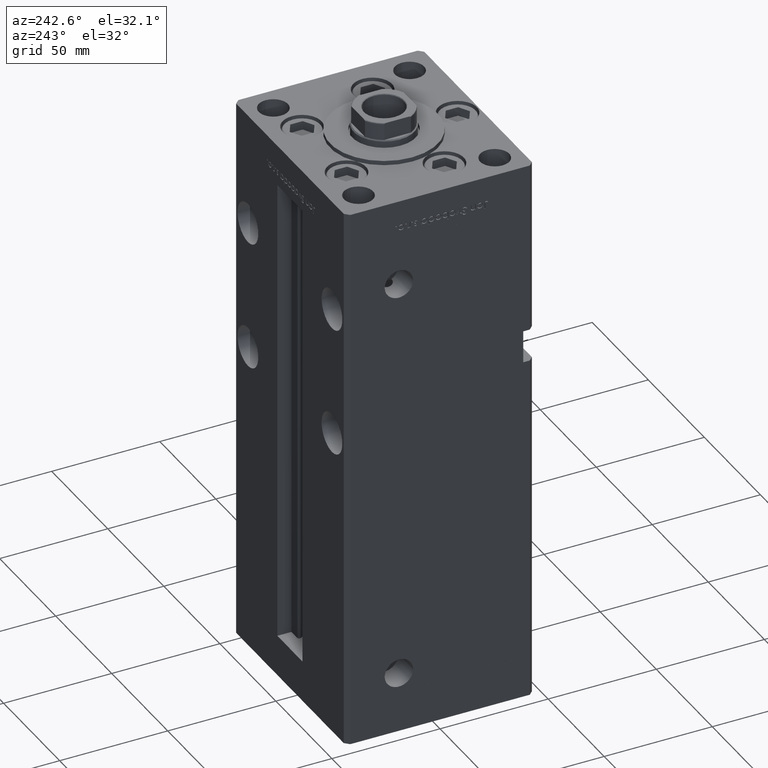
[diagram: clean part render]
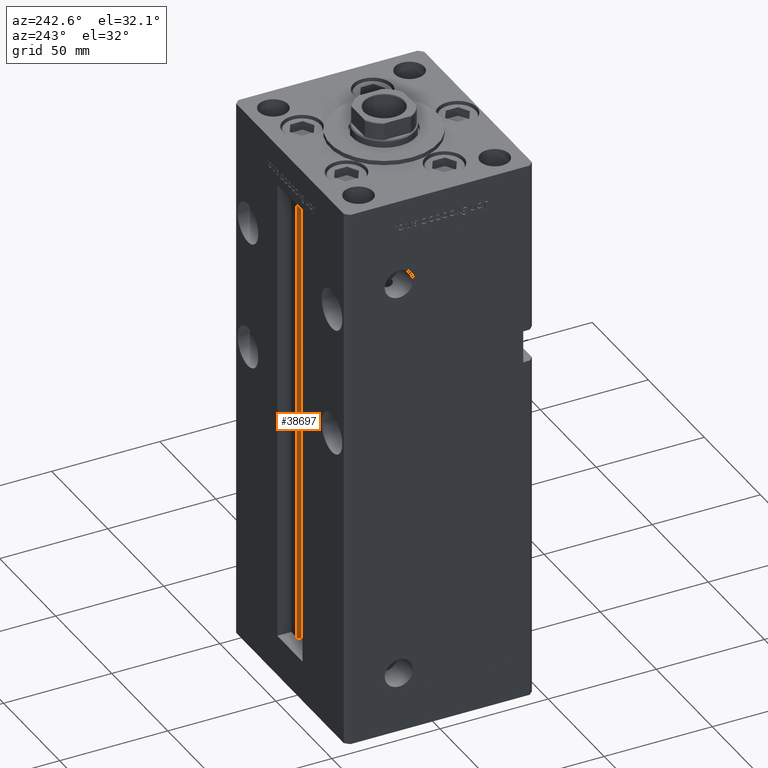
[diagram: same view with one face highlighted and labeled with its STEP entity id]
A machine part, auxiliary view. The second image highlights one B-rep face of the part: STEP entity #38697.
In plain terms, the highlighted cylindrical surface (edge-blend (fillet) strip) has radius 0.9333 mm, axis along (0, 0, 1).
Its self-contained STEP definition (entity closure, byte-faithful):
#887 = VECTOR ( 'NONE', #2363, 1000.000000000000000 ) ;
#1453 = CYLINDRICAL_SURFACE ( 'NONE', #14618, 0.9333333333339999260 ) ;
#2363 = DIRECTION ( 'NONE',  ( -0.000000000000000000, -0.000000000000000000, 1.000000000000000000 ) ) ;
#3551 = CARTESIAN_POINT ( 'NONE',  ( 5.375042956467946276, 35.59999999999899245, 218.5000000000000000 ) ) ;
#4870 = DIRECTION ( 'NONE',  ( 1.000000000000000000, 0.000000000000000000, 0.000000000000000000 ) ) ;
#5236 = CARTESIAN_POINT ( 'NONE',  ( 6.183333333333996151, 37.00000000000000000, 218.5000000000000000 ) ) ;
#6134 = LINE ( 'NONE', #50831, #887 ) ;
#6401 = CARTESIAN_POINT ( 'NONE',  ( 6.183333333333996151, 36.06666666666599497, 218.5000000000000000 ) ) ;
#9520 = DIRECTION ( 'NONE',  ( -0.000000000000000000, -0.000000000000000000, 1.000000000000000000 ) ) ;
#11570 = EDGE_CURVE ( 'NONE', #44885, #35787, #52100, .T. ) ;
#12076 = EDGE_LOOP ( 'NONE', ( #15387, #19446, #46304, #47045 ) ) ;
#14618 = AXIS2_PLACEMENT_3D ( 'NONE', #22708, #9520, #26216 ) ;
#15238 = LINE ( 'NONE', #30404, #34484 ) ;
#15387 = ORIENTED_EDGE ( 'NONE', *, *, #34991, .F. ) ;
#17979 = DIRECTION ( 'NONE',  ( 0.000000000000000000, 0.000000000000000000, -1.000000000000000000 ) ) ;
#18664 = FACE_OUTER_BOUND ( 'NONE', #12076, .T. ) ;
#19446 = ORIENTED_EDGE ( 'NONE', *, *, #11570, .F. ) ;
#19821 = CIRCLE ( 'NONE', #29279, 0.9333333333339999260 ) ;
#22562 = DIRECTION ( 'NONE',  ( 1.000000000000000000, 0.000000000000000000, 0.000000000000000000 ) ) ;
#22708 = CARTESIAN_POINT ( 'NONE',  ( 6.183333333333996151, 36.06666666666599497, 0.000000000000000000 ) ) ;
#26216 = DIRECTION ( 'NONE',  ( 1.000000000000000000, 0.000000000000000000, 0.000000000000000000 ) ) ;
#27353 = VERTEX_POINT ( 'NONE', #3551 ) ;
#29279 = AXIS2_PLACEMENT_3D ( 'NONE', #6401, #17979, #22562 ) ;
#30143 = DIRECTION ( 'NONE',  ( -0.000000000000000000, -0.000000000000000000, 1.000000000000000000 ) ) ;
#30404 = CARTESIAN_POINT ( 'NONE',  ( 5.375042956467944499, 35.59999999999899245, 0.000000000000000000 ) ) ;
#34484 = VECTOR ( 'NONE', #30143, 1000.000000000000000 ) ;
#34991 = EDGE_CURVE ( 'NONE', #35787, #41039, #6134, .T. ) ;
#35014 = EDGE_CURVE ( 'NONE', #27353, #41039, #19821, .T. ) ;
#35787 = VERTEX_POINT ( 'NONE', #41137 ) ;
#38697 = ADVANCED_FACE ( 'NONE', ( #18664 ), #1453, .T. ) ;
#40062 = AXIS2_PLACEMENT_3D ( 'NONE', #41740, #41202, #4870 ) ;
#40742 = EDGE_CURVE ( 'NONE', #44885, #27353, #15238, .T. ) ;
#41039 = VERTEX_POINT ( 'NONE', #5236 ) ;
#41137 = CARTESIAN_POINT ( 'NONE',  ( 6.183333333333996151, 37.00000000000000000, 0.000000000000000000 ) ) ;
#41202 = DIRECTION ( 'NONE',  ( -0.000000000000000000, -0.000000000000000000, -1.000000000000000000 ) ) ;
#41740 = CARTESIAN_POINT ( 'NONE',  ( 6.183333333333996151, 36.06666666666599497, 0.000000000000000000 ) ) ;
#43814 = CARTESIAN_POINT ( 'NONE',  ( 5.375042956467944499, 35.59999999999899245, 0.000000000000000000 ) ) ;
#44885 = VERTEX_POINT ( 'NONE', #43814 ) ;
#46304 = ORIENTED_EDGE ( 'NONE', *, *, #40742, .T. ) ;
#47045 = ORIENTED_EDGE ( 'NONE', *, *, #35014, .T. ) ;
#50831 = CARTESIAN_POINT ( 'NONE',  ( 6.183333333333996151, 37.00000000000000000, 0.000000000000000000 ) ) ;
#52100 = CIRCLE ( 'NONE', #40062, 0.9333333333339999260 ) ;